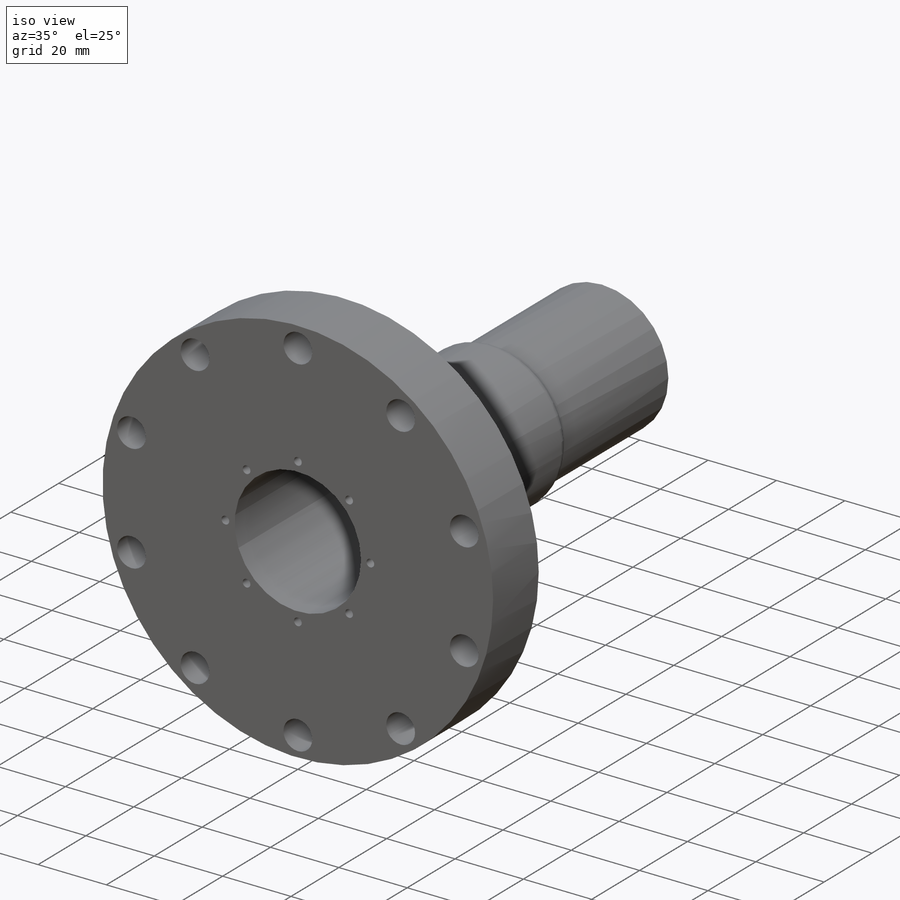
[diagram: iso view]
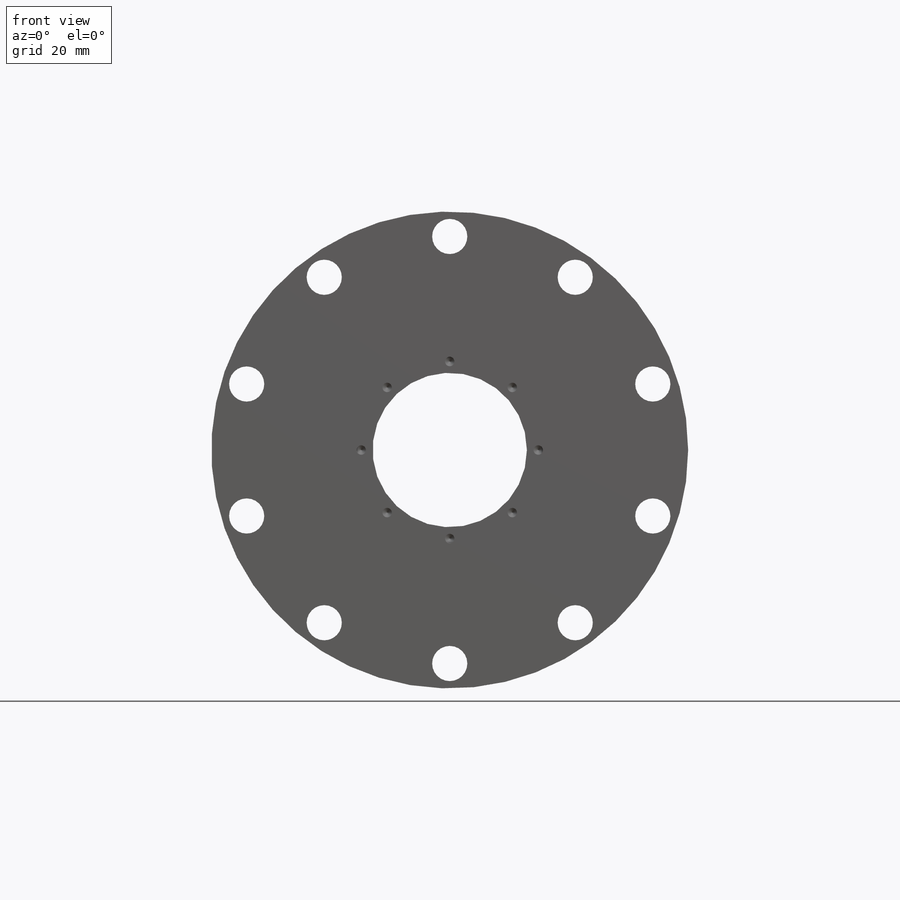
[diagram: front view]
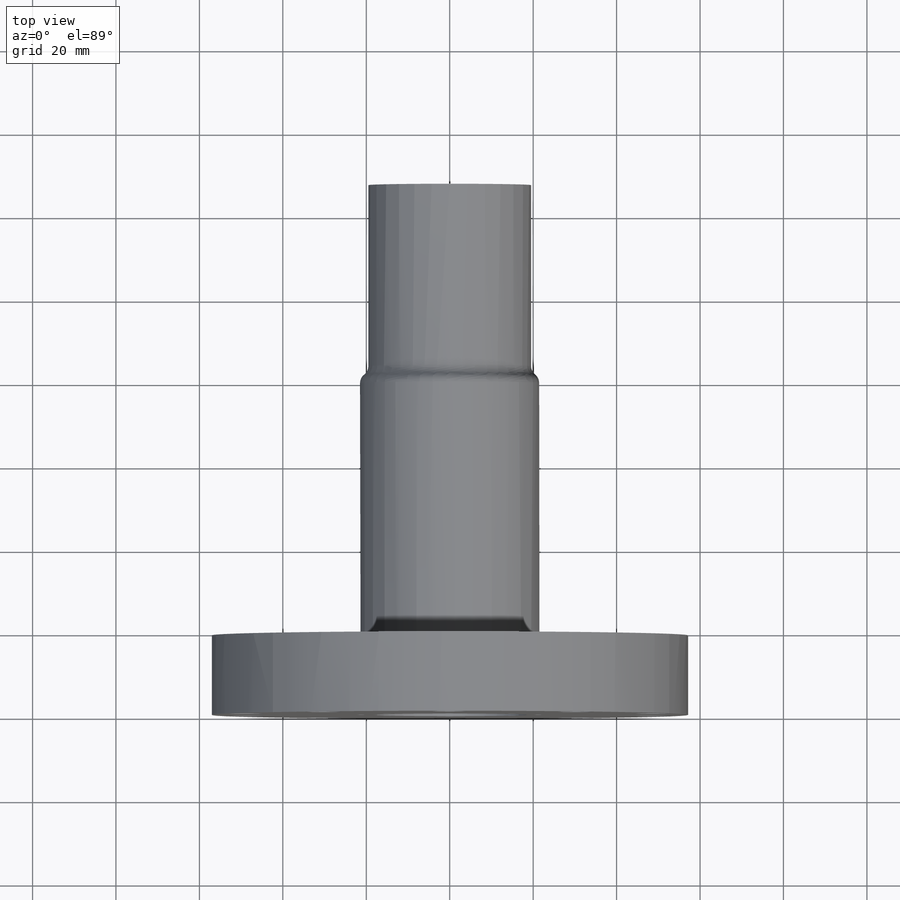
[diagram: top view]
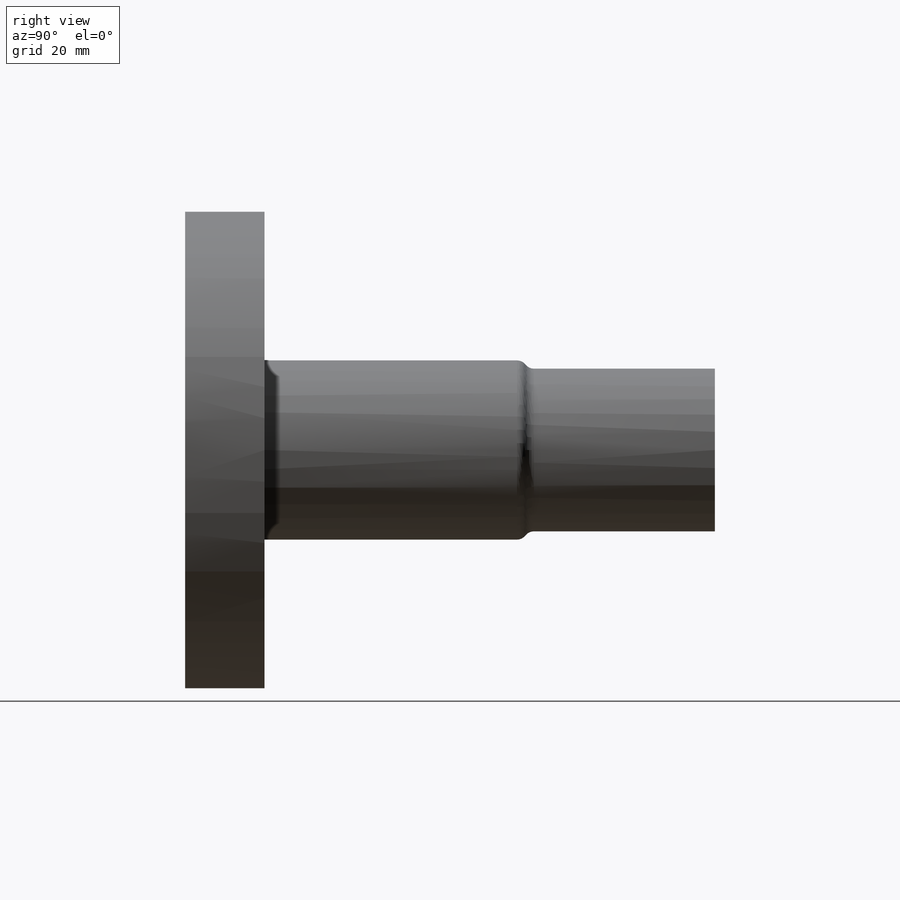
[diagram: right view]
SOLIDWORKS PART (.sldprt)
format: sldprt  version: not decoded by parser v0  size: 378,880 bytes
history: native  units: mm
features: sketch x8, thread x8, extrude x3, cut_extrude x2, fillet x2, material x1, pattern_circular x1, hole x1 (+11 scaffold rows collapsed)
feature tree (37):
  scaffold x11  (default folders/planes/origin — collapsed)
  material  "Material <not specified>"
  sketch  "Sketch1"  dims[c1.D1=~48.374098mm c1.D2=~37.948778mm c2.D1=~50.087238mm c2.D2=~44.101272mm c3.D1=37.0mm c3.D2=39.0mm c4.D1=2.0mm c4.D2=1.0mm c5.D1=1.5mm c5.D2=1.0mm]
  extrude  "Extrude1"  Depth=137.668mm
  sketch  "Sketch4"  dims[D1=114.3mm]
  extrude  "Extrude2"  Depth=19.05mm
  sketch  "Sketch5"  dims[D1=8.4328mm D2=51.181mm]
  cut_extrude  "Cut-Extrude1"  [1 undecoded]
  pattern_circular  "CirPattern1"  Count=10 Angle=360deg
  sketch  "Sketch6"  dims[D1=30.0mm D2=30.0mm]
  hole  "#4-40 Tapped Hole2"  Diameter=2.2606mm Depth=7.62mm
  sketch  "Sketch9"  dims[c1.D1=30.0mm c1.D2=30.0mm c1.D3=30.0mm c1.D4=30.0mm c1.D5=30.0mm c1.D6=30.0mm c1.D7=~26.904558mm c2.D7=90.0deg]
  sketch  "Sketch8"  dims[hole-wizard template sketch: 50 standard entries collapsed; hole parameters above]
  thread  "Hole Thread5"  Diameter=5.588mm  [1 undecoded]
  thread  "Hole Thread6"  Diameter=5.588mm  [1 undecoded]
  thread  "Hole Thread7"  Diameter=5.588mm  [1 undecoded]
  thread  "Hole Thread8"  Diameter=5.588mm  [1 undecoded]
  thread  "Hole Thread9"  Diameter=5.588mm  [1 undecoded]
  thread  "Hole Thread10"  Diameter=5.588mm  [1 undecoded]
  thread  "Hole Thread11"  Diameter=5.588mm  [1 undecoded]
  thread  "Hole Thread12"  Diameter=5.588mm  [1 undecoded]
  sketch  "Sketch10"  dims[D1=0.5mm]
  cut_extrude  "Extrude3"  Depth=25.4mm
  sketch  "Sketch12"  dims[D1=43.0mm]
  extrude  "Extrude4"  Depth=63mm
  fillet  "Fillet1"  Radius=2.54mm
  fillet  "Fillet2"  Radius=2.54mm
decode coverage: 24 of 25 modeling features carry decoded parameters
note: ~ marks probable driven/reference dimensions
note: 9 parameter values undecoded
note: suppression state not decoded; provenance and decode notes live in map.json
